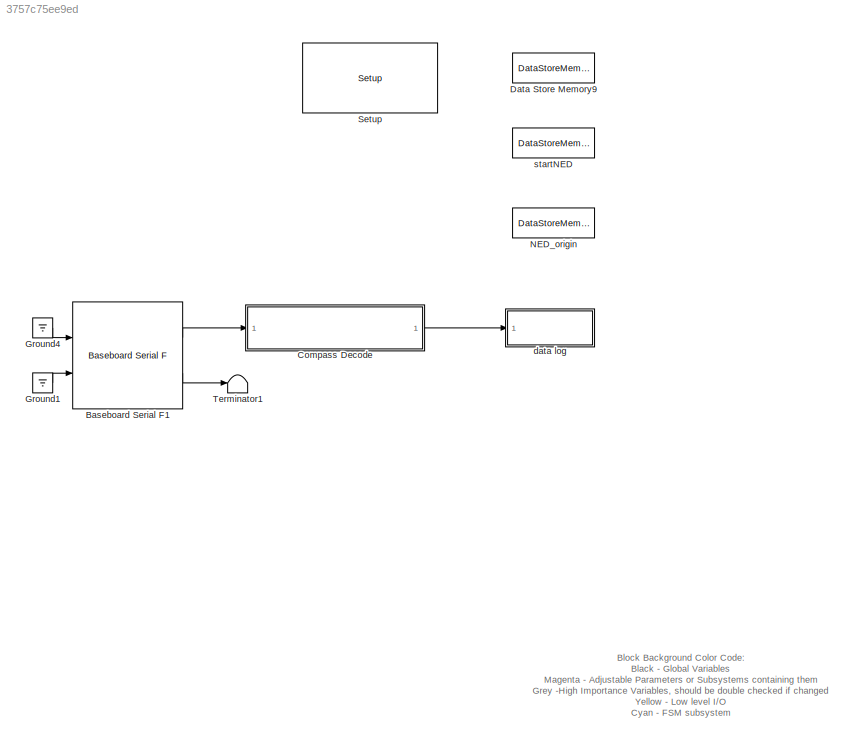
MODEL slx_3757c75ee9ed
KIND model
BLOCK [Reference] Baseboard Serial F1  REF=xpcseriallib/Mainboard/Baseboard
Serial F
  Ports = [2, 2]
  SourceBlock = xpcseriallib/Mainboard/Baseboard\nSerial F
  SourceType = Baseboard RS232 Send Receive
  automode1 = on
  automode2 = off
  baud1 = 19200
  baud2 = 19200
  config = Com2/Com4
  fifomode1 = 64 deep
  fifomode2 = 64 deep
  group = Board Setup
  irqnum = 4
  ndata1 = 8
  ndata2 = 8
  nstop1 = 1
  nstop2 = 1
  parity1 = None
  parity2 = None
  port = 2
  rcvfifosize1 = 1024
  rcvfifosize2 = 1024
  rlevel1 = half full
  rlevel2 = half full
  saddr1 = 0x3f8
  saddr2 = 0x3e8
  xmtdatatype1 = 8 bit uint null terminated
  xmtdatatype2 = 8 bit uint null terminated
  xmtfifosize1 = 1024
  xmtfifosize2 = 1024
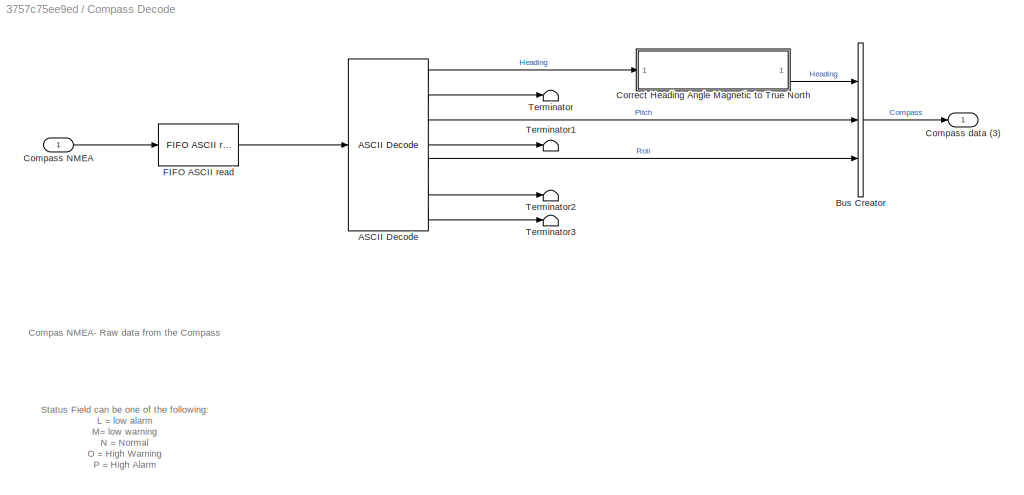
BLOCK [SubSystem] Compass Decode
  Ports = [1, 1]
  RequestExecContextInheritance = off
BLOCK [Reference] Compass Decode/ASCII Decode   REF=xpcseriallib/ASCII Decode 
  Ports = [1, 7]
  SourceBlock = xpcseriallib/ASCII Decode
  SourceType = ASCII Decode
  format = $PTNTHPR,%f,%c%f,%c%f,%c
  nvars = 7
  vartypes = { }
BLOCK [BusCreator] Compass Decode/Bus Creator
  DisplayOption = bar
  Inputs = 3
  Ports = [3, 1]
BLOCK [Inport] Compass Decode/Compass NMEA
  IconDisplay = Port number
BLOCK [Outport] Compass Decode/Compass data (3)
  IconDisplay = Port number
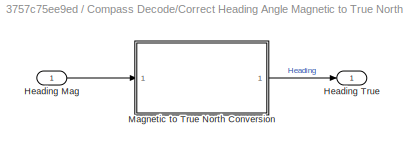
BLOCK [SubSystem] Compass Decode/Correct Heading Angle Magnetic to True North
  Ports = [1, 1]
  RequestExecContextInheritance = off
BLOCK [Inport] Compass Decode/Correct Heading Angle Magnetic to True North/Heading Mag
  IconDisplay = Port number
BLOCK [Outport] Compass Decode/Correct Heading Angle Magnetic to True North/Heading True
  IconDisplay = Port number
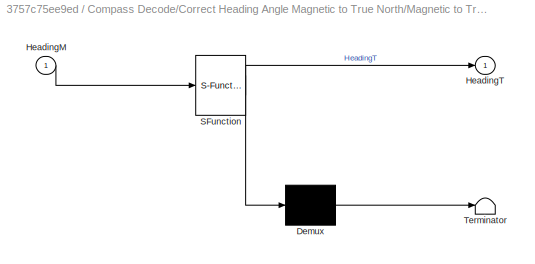
BLOCK [SubSystem] Compass Decode/Correct Heading Angle Magnetic to True North/Magnetic to True North Conversion
  ErrorFcn = Stateflow.Translate.translate
  PermitHierarchicalResolution = ExplicitOnly
  Ports = [1, 1]
  RequestExecContextInheritance = off
  SFBlockType = MATLAB Function
  TreatAsAtomicUnit = on
BLOCK [Demux] Compass Decode/Correct Heading Angle Magnetic to True North/Magnetic to True North Conversion/ Demux 
  Outputs = 1
  Ports = [1, 1]
BLOCK [S-Function] Compass Decode/Correct Heading Angle Magnetic to True North/Magnetic to True North Conversion/ SFunction 
  EnableBusSupport = on
  FunctionName = sf_sfun
  PortCounts = [1 2]
  Ports = [1, 2]
  Tag = Stateflow S-Function RoboBoat_CompassOnly 2
BLOCK [Terminator] Compass Decode/Correct Heading Angle Magnetic to True North/Magnetic to True North Conversion/ Terminator 
BLOCK [Inport] Compass Decode/Correct Heading Angle Magnetic to True North/Magnetic to True North Conversion/HeadingM
  IconDisplay = Port number
BLOCK [Outport] Compass Decode/Correct Heading Angle Magnetic to True North/Magnetic to True North Conversion/HeadingT
  IconDisplay = Port number
BLOCK [Reference] Compass Decode/FIFO ASCII read   REF=xpcseriallib/FIFO ASCII read 
  Ports = [1, 1]
  SourceBlock = xpcseriallib/FIFO ASCII read
  SourceType = Asynchronous FIFO Block: reader
  enable = off
  header = {'$PTNTHPR'}
  hold = Zero output if no new data
  maxsize = 64
  outputtype = 8 bit uint null terminated
  sampletime = -1
  term = [13 10]
BLOCK [Terminator] Compass Decode/Terminator
BLOCK [Terminator] Compass Decode/Terminator1
BLOCK [Terminator] Compass Decode/Terminator2
BLOCK [Terminator] Compass Decode/Terminator3
BLOCK [DataStoreMemory] Data Store Memory9
  DataStoreName = transWpt
  InitialValue = [4009.4964500000, 7532.95009000000]
  ReadBeforeWriteMsg = warning
  WriteAfterReadMsg = warning
  WriteAfterWriteMsg = warning
BLOCK [Ground] Ground1
BLOCK [Ground] Ground4
BLOCK [DataStoreMemory] NED_origin
  DataStoreName = NED_origin
  InitialValue = [40.1584788333333, -74.8827228333334]
  ReadBeforeWriteMsg = warning
  VectorParams1D = off
  WriteAfterReadMsg = warning
  WriteAfterWriteMsg = warning
BLOCK [Reference] Setup  REF=speedgoatlib_IO102/Setup
  Ports = []
  SourceBlock = speedgoatlib_IO102/Setup
  SourceType = setup_IO102
  adChannel = 16
  adChannelMode = Multiple-channel (enter number of channels below)
  adCoupling = Differential
  cal = off
  daChannel = [1,2,3,4]
  daInitValue = [0]
  daReset = [1]
  diChannel = [1,2,3,4,5,6,7,8]
  doChannel = [1,2,3,4,5,6,7,8]
  doInitValue = [0]
  doReset = [1]
  group = Digital output setup
  id = 1
  pciSlot = -1
  range = +-5V
BLOCK [Terminator] Terminator1
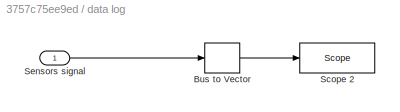
BLOCK [SubSystem] data log
  Ports = [1]
  RequestExecContextInheritance = off
BLOCK [BusToVector] data log/Bus to Vector
BLOCK [Reference] data log/Scope 2  REF=slrtlib/Displays and
Logging/Scope 
  Ports = [1]
  SourceBlock = slrtlib/Displays and\nLogging/Scope
  SourceType = xpcscopeblock
  autorestart = on
  autostart = on
  dynamicfilemode = on
  filename = cmp_<%%%>.dat
  formatstr = '%15.6f'
  grid = on
  interleave = 1
  maxwritefilesize = 512*1024^2
  mode = Commit
  noprepostsamples = 0
  nosamples = 250
  scopeno = 1
  scopetype = File
  triggerlevel = 0.0
  triggermode = FreeRun
  triggersample = 0
  triggerscope = 1
  triggersignal = 1
  triggerslope = Either
  trigsignalfromport = off
  viewmode = Graphical redraw
  writesize = 512
  ylimits = [0,0]
BLOCK [Inport] data log/Sensors signal
  IconDisplay = Port number
BLOCK [DataStoreMemory] startNED
  DataStoreName = startNED
  InitialValue = [-23.3581211770857, 19.3837155783714]
  ReadBeforeWriteMsg = warning
  VectorParams1D = off
  WriteAfterReadMsg = warning
  WriteAfterWriteMsg = warning
ANNOTATION (root): Block Background Color Code: Black - Global Variables Magenta - Adjustable Parameters or Subsystems containing them Grey -High Importance Variables, should be double checked if changed Yellow - Low level I/O Cyan - FSM subsystem Light Blue - Conditional Selector Block Dark Green - Task Enablers Orange - Output Selectors Green - Signal Bussing Blocks Red - Logic blocks. Determine signals for output...<+28ch>
ANNOTATION Compass Decode: Compas NMEA- Raw data from the Compass
ANNOTATION Compass Decode: Status Field can be one of the following: L = low alarm M= low warning N = Normal O = High Warning P = High Alarm C = Tuning analog circuit
LINE Baseboard Serial F1:1 -> Compass Decode:1
LINE Baseboard Serial F1:2 -> Terminator1:1
LINE Compass Decode/ASCII Decode :1 -> Compass Decode/Correct Heading Angle Magnetic to True North:1
LINE Compass Decode/ASCII Decode :2 -> Compass Decode/Terminator:1
LINE Compass Decode/ASCII Decode :3 -> Compass Decode/Bus Creator:2
LINE Compass Decode/ASCII Decode :4 -> Compass Decode/Terminator1:1
LINE Compass Decode/ASCII Decode :5 -> Compass Decode/Bus Creator:3
LINE Compass Decode/ASCII Decode :6 -> Compass Decode/Terminator2:1
LINE Compass Decode/ASCII Decode :7 -> Compass Decode/Terminator3:1
LINE Compass Decode/Bus Creator:1 -> Compass Decode/Compass data (3):1
LINE Compass Decode/Compass NMEA:1 -> Compass Decode/FIFO ASCII read :1
LINE Compass Decode/Correct Heading Angle Magnetic to True North/Heading Mag:1 -> Compass Decode/Correct Heading Angle Magnetic to True North/Magnetic to True North Conversion:1
LINE Compass Decode/Correct Heading Angle Magnetic to True North/Magnetic to True North Conversion:1 -> Compass Decode/Correct Heading Angle Magnetic to True North/Heading True:1
LINE Compass Decode/Correct Heading Angle Magnetic to True North:1 -> Compass Decode/Bus Creator:1
LINE Compass Decode/FIFO ASCII read :1 -> Compass Decode/ASCII Decode :1
LINE Compass Decode:1 -> data log:1
LINE Ground1:1 -> Baseboard Serial F1:2
LINE Ground4:1 -> Baseboard Serial F1:1
LINE data log/Bus to Vector:1 -> data log/Scope 2:1
LINE data log/Sensors signal:1 -> data log/Bus to Vector:1
